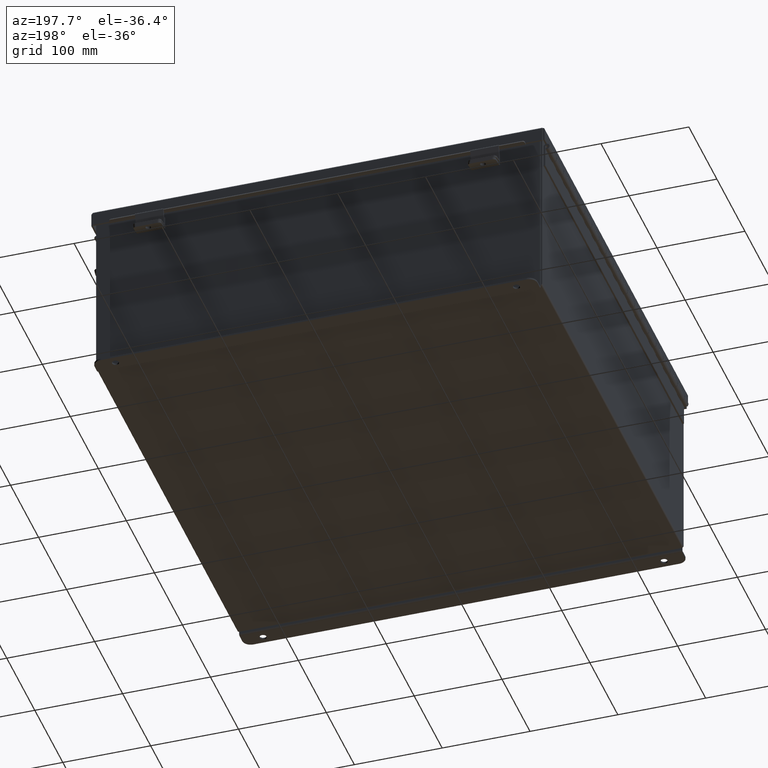
[diagram: clean part render]
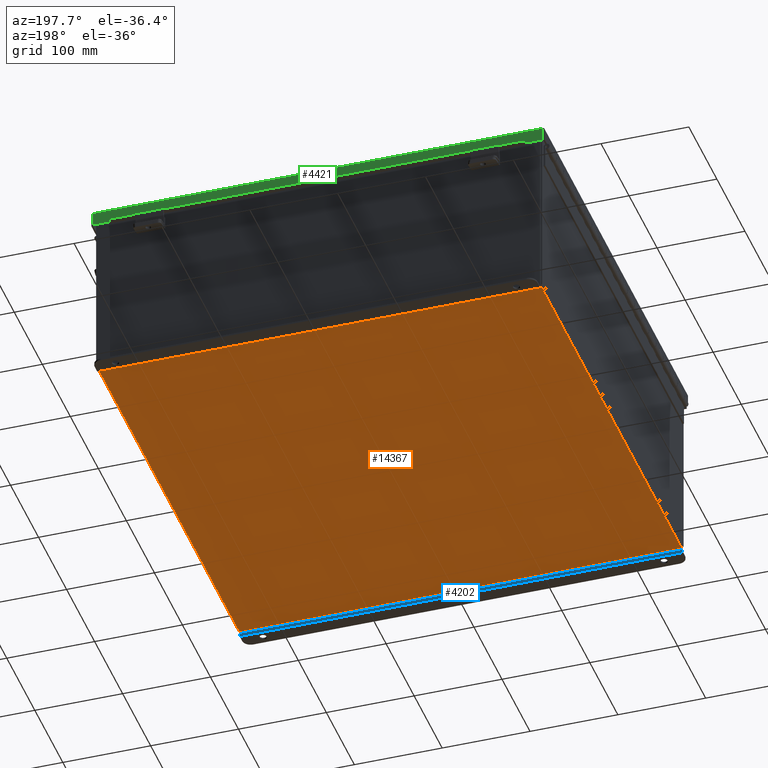
[diagram: same view with three faces highlighted in distinct colors, each labeled with its STEP entity id]
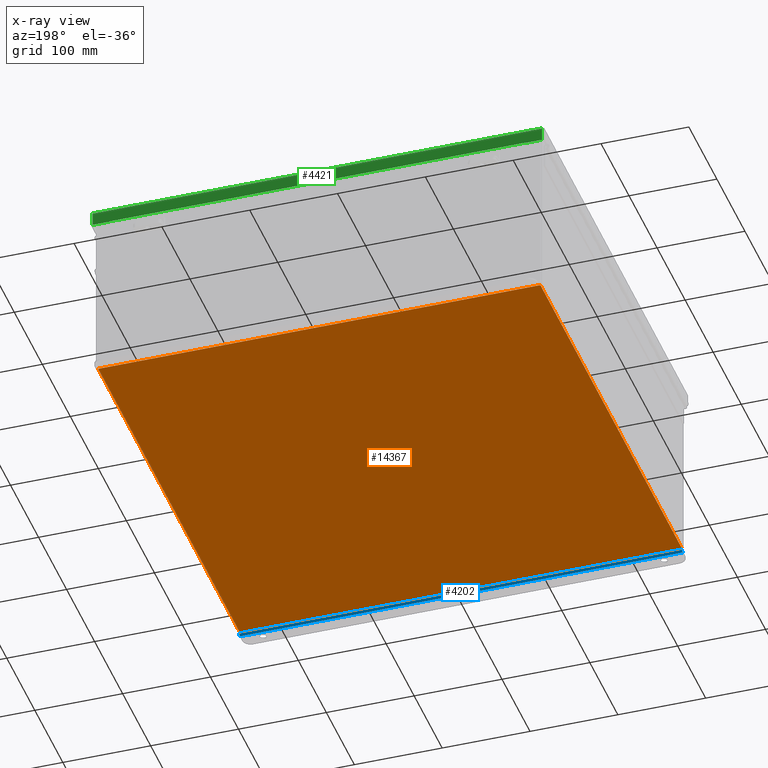
[diagram: x-ray of the same camera — body ghosted, the three highlighted faces saturated]
A machine part, auxiliary view with three faces highlighted in distinct colors.
The next image is the same camera in x-ray (body ghosted, the three faces saturated) — at least one of them is partly hidden behind the body in this view.
Their STEP definitions:

[orange] entity #14367 — the highlighted planar face has unit normal (0, 0, -1).
#65 = LINE ( 'NONE', #14070, #12718 ) ;
#1476 = VERTEX_POINT ( 'NONE', #14619 ) ;
#1915 = CARTESIAN_POINT ( 'NONE',  ( -9.999999999999998200, 9.925300000000001800, -0.07470000000000000300 ) ) ;
#3116 = ORIENTED_EDGE ( 'NONE', *, *, #17358, .F. ) ;
#3321 = AXIS2_PLACEMENT_3D ( 'NONE', #20022, #21731, #11268 ) ;
#3717 = LINE ( 'NONE', #13080, #16427 ) ;
#3770 = DIRECTION ( 'NONE',  ( -0.0000000000000000000, 1.000000000000000000, -0.0000000000000000000 ) ) ;
#4079 = VERTEX_POINT ( 'NONE', #7234 ) ;
#4439 = VECTOR ( 'NONE', #10445, 39.37007874015748100 ) ;
#4983 = ORIENTED_EDGE ( 'NONE', *, *, #7022, .T. ) ;
#5141 = CARTESIAN_POINT ( 'NONE',  ( 9.912300000000001900, -9.925299999999998200, -0.07470000000000000300 ) ) ;
#7022 = EDGE_CURVE ( 'NONE', #19064, #1476, #65, .T. ) ;
#7234 = CARTESIAN_POINT ( 'NONE',  ( 9.912300000000001900, 9.925299999999998200, -0.07469999999999994700 ) ) ;
#7809 = PLANE ( 'NONE',  #3321 ) ;
#9901 = VECTOR ( 'NONE', #14217, 39.37007874015748100 ) ;
#10431 = LINE ( 'NONE', #15998, #9901 ) ;
#10445 = DIRECTION ( 'NONE',  ( -1.000000000000000000, -0.0000000000000000000, -0.0000000000000000000 ) ) ;
#11268 = DIRECTION ( 'NONE',  ( -1.000000000000000000, 0.0000000000000000000, -0.0000000000000000000 ) ) ;
#12332 = EDGE_LOOP ( 'NONE', ( #3116, #14309, #12808, #4983 ) ) ;
#12718 = VECTOR ( 'NONE', #3770, 39.37007874015748100 ) ;
#12808 = ORIENTED_EDGE ( 'NONE', *, *, #15729, .F. ) ;
#13080 = CARTESIAN_POINT ( 'NONE',  ( -9.999999999999998200, -9.925299999999998200, -0.07470000000000000300 ) ) ;
#14070 = CARTESIAN_POINT ( 'NONE',  ( -9.912299999999998300, -9.925299999999998200, -0.07469999999999994700 ) ) ;
#14217 = DIRECTION ( 'NONE',  ( -0.0000000000000000000, -1.000000000000000000, -0.0000000000000000000 ) ) ;
#14309 = ORIENTED_EDGE ( 'NONE', *, *, #21996, .T. ) ;
#14367 = ADVANCED_FACE ( 'NONE', ( #16490 ), #7809, .T. ) ;
#14619 = CARTESIAN_POINT ( 'NONE',  ( -9.912299999999998300, 9.925300000000001800, -0.07470000000000000300 ) ) ;
#15435 = CARTESIAN_POINT ( 'NONE',  ( -9.912299999999998300, -9.925299999999992900, -0.07469999999999994700 ) ) ;
#15729 = EDGE_CURVE ( 'NONE', #19064, #18543, #3717, .T. ) ;
#15998 = CARTESIAN_POINT ( 'NONE',  ( 9.912300000000001900, 9.925300000000001800, -0.07469999999999994700 ) ) ;
#16427 = VECTOR ( 'NONE', #20066, 39.37007874015748100 ) ;
#16490 = FACE_OUTER_BOUND ( 'NONE', #12332, .T. ) ;
#17358 = EDGE_CURVE ( 'NONE', #4079, #1476, #22317, .T. ) ;
#18543 = VERTEX_POINT ( 'NONE', #5141 ) ;
#19064 = VERTEX_POINT ( 'NONE', #15435 ) ;
#20022 = CARTESIAN_POINT ( 'NONE',  ( 0.0000000000000000000, 0.0000000000000000000, -0.07470000000000000300 ) ) ;
#20066 = DIRECTION ( 'NONE',  ( 1.000000000000000000, 0.0000000000000000000, 0.0000000000000000000 ) ) ;
#21731 = DIRECTION ( 'NONE',  ( 0.0000000000000000000, 0.0000000000000000000, -1.000000000000000000 ) ) ;
#21996 = EDGE_CURVE ( 'NONE', #4079, #18543, #10431, .T. ) ;
#22317 = LINE ( 'NONE', #1915, #4439 ) ;

[blue] entity #4202 — the highlighted cylindrical surface (edge-blend (fillet) strip) has radius 2.2276 mm, axis along (1, 0, -0).
#1649 = CARTESIAN_POINT ( 'NONE',  ( -9.925299999999998200, -0.07470000000000234800, -4.099299999999999500 ) ) ;
#1715 = ORIENTED_EDGE ( 'NONE', *, *, #7615, .F. ) ;
#2092 = CIRCLE ( 'NONE', #20398, 0.08770000000000009700 ) ;
#2514 = ORIENTED_EDGE ( 'NONE', *, *, #11276, .F. ) ;
#3252 = EDGE_LOOP ( 'NONE', ( #1715, #2514, #8990, #21215 ) ) ;
#3558 = VECTOR ( 'NONE', #20733, 39.37007874015748100 ) ;
#4202 = ADVANCED_FACE ( 'NONE', ( #18838 ), #9060, .T. ) ;
#5876 = CARTESIAN_POINT ( 'NONE',  ( 9.925300000000016000, 0.01300000000001759100, -4.187000000000000300 ) ) ;
#6055 = VERTEX_POINT ( 'NONE', #21569 ) ;
#6107 = AXIS2_PLACEMENT_3D ( 'NONE', #7651, #19845, #9408 ) ;
#6167 = DIRECTION ( 'NONE',  ( -1.000000000000000000, -8.208677865577687000E-017, 0.0000000000000000000 ) ) ;
#7432 = CIRCLE ( 'NONE', #6107, 0.08770000000000009700 ) ;
#7615 = EDGE_CURVE ( 'NONE', #11168, #14384, #8102, .T. ) ;
#7651 = CARTESIAN_POINT ( 'NONE',  ( -9.925299999999996500, 0.01299999999999792100, -4.099300000000003900 ) ) ;
#8102 = LINE ( 'NONE', #1649, #3558 ) ;
#8990 = ORIENTED_EDGE ( 'NONE', *, *, #14288, .T. ) ;
#9060 = CYLINDRICAL_SURFACE ( 'NONE', #20391, 0.08770000000000026400 ) ;
#9408 = DIRECTION ( 'NONE',  ( 0.0000000000000000000, -1.000000000000000000, 0.0000000000000000000 ) ) ;
#9491 = CARTESIAN_POINT ( 'NONE',  ( 9.925299999999998200, 0.01300000000001759100, -4.099299999999999500 ) ) ;
#11045 = DIRECTION ( 'NONE',  ( 1.000000000000000000, 2.752408485047608900E-017, -0.0000000000000000000 ) ) ;
#11168 = VERTEX_POINT ( 'NONE', #21201 ) ;
#11193 = DIRECTION ( 'NONE',  ( 0.0000000000000000000, -1.000000000000000000, 0.0000000000000000000 ) ) ;
#11276 = EDGE_CURVE ( 'NONE', #21566, #11168, #7432, .T. ) ;
#11446 = CARTESIAN_POINT ( 'NONE',  ( -9.925299999999998200, 0.01299999999999792100, -4.099300000000003900 ) ) ;
#13463 = LINE ( 'NONE', #5876, #22185 ) ;
#14288 = EDGE_CURVE ( 'NONE', #21566, #6055, #13463, .T. ) ;
#14384 = VERTEX_POINT ( 'NONE', #16565 ) ;
#14960 = DIRECTION ( 'NONE',  ( 0.0000000000000000000, -3.699053013085864000E-015, -1.000000000000000000 ) ) ;
#15819 = EDGE_CURVE ( 'NONE', #14384, #6055, #2092, .T. ) ;
#16565 = CARTESIAN_POINT ( 'NONE',  ( 9.925299999999998200, -0.07469999999998268300, -4.099300000000003900 ) ) ;
#18838 = FACE_OUTER_BOUND ( 'NONE', #3252, .T. ) ;
#19845 = DIRECTION ( 'NONE',  ( -1.000000000000000000, -8.208677865577687000E-017, 0.0000000000000000000 ) ) ;
#20391 = AXIS2_PLACEMENT_3D ( 'NONE', #11446, #6167, #14960 ) ;
#20398 = AXIS2_PLACEMENT_3D ( 'NONE', #9491, #21662, #11193 ) ;
#20733 = DIRECTION ( 'NONE',  ( 1.000000000000000000, 8.208677865577687000E-017, -0.0000000000000000000 ) ) ;
#21201 = CARTESIAN_POINT ( 'NONE',  ( -9.925299999999996500, -0.07470000000000234800, -4.099299999999999500 ) ) ;
#21215 = ORIENTED_EDGE ( 'NONE', *, *, #15819, .F. ) ;
#21566 = VERTEX_POINT ( 'NONE', #21939 ) ;
#21569 = CARTESIAN_POINT ( 'NONE',  ( 9.925300000000016000, 0.01300000000001759100, -4.187000000000000300 ) ) ;
#21662 = DIRECTION ( 'NONE',  ( 1.000000000000000000, 8.208677865577687000E-017, -0.0000000000000000000 ) ) ;
#21939 = CARTESIAN_POINT ( 'NONE',  ( -9.925299999999978700, 0.01300000000000010700, -4.187000000000003800 ) ) ;
#22185 = VECTOR ( 'NONE', #11045, 39.37007874015748100 ) ;

[green] entity #4421 — the highlighted planar face has unit normal (-0, -1, -0).
#24 = CARTESIAN_POINT ( 'NONE',  ( 0.0000000000000000000, 10.15624999999998400, -3.715313271383398100E-014 ) ) ;
#425 = LINE ( 'NONE', #12943, #18256 ) ;
#780 = VERTEX_POINT ( 'NONE', #18286 ) ;
#1041 = CARTESIAN_POINT ( 'NONE',  ( 10.07447893218817300, 10.15624999999998400, 0.01300000000000010700 ) ) ;
#1050 = DIRECTION ( 'NONE',  ( -1.000000000000000000, -3.215975411700707400E-030, -0.0000000000000000000 ) ) ;
#1167 = CARTESIAN_POINT ( 'NONE',  ( 9.324478932188171100, 10.15624999999998400, 0.5967115427318793200 ) ) ;
#1249 = CARTESIAN_POINT ( 'NONE',  ( 9.324478932188171100, 10.15624999999998600, 0.5967115427318793200 ) ) ;
#1409 = DIRECTION ( 'NONE',  ( -3.347543324056399800E-030, -1.000000000000000000, 3.569293475308532400E-015 ) ) ;
#2027 = ORIENTED_EDGE ( 'NONE', *, *, #4588, .T. ) ;
#2455 = EDGE_CURVE ( 'NONE', #11644, #13441, #6492, .T. ) ;
#2606 = LINE ( 'NONE', #14813, #21555 ) ;
#2787 = EDGE_CURVE ( 'NONE', #13441, #9550, #14875, .T. ) ;
#3004 = CARTESIAN_POINT ( 'NONE',  ( 10.15625000000003900, 10.15624999999998400, 0.01299999999999901400 ) ) ;
#3974 = ORIENTED_EDGE ( 'NONE', *, *, #2787, .F. ) ;
#4057 = VECTOR ( 'NONE', #4700, 39.37007874015748100 ) ;
#4421 = ADVANCED_FACE ( 'NONE', ( #18565 ), #11044, .F. ) ;
#4588 = EDGE_CURVE ( 'NONE', #9544, #780, #2606, .T. ) ;
#4700 = DIRECTION ( 'NONE',  ( 1.000000000000000000, 3.215975411700707400E-030, -0.0000000000000000000 ) ) ;
#4883 = CARTESIAN_POINT ( 'NONE',  ( 10.07447893218817300, 10.15624999999998400, 0.0000000000000000000 ) ) ;
#4916 = CARTESIAN_POINT ( 'NONE',  ( 9.324478932188171100, 10.15624999999998600, 0.6123000000000005100 ) ) ;
#5071 = DIRECTION ( 'NONE',  ( 7.009925220120712300E-014, -1.401985044024140700E-013, -1.000000000000000000 ) ) ;
#5436 = ORIENTED_EDGE ( 'NONE', *, *, #10814, .F. ) ;
#5831 = VECTOR ( 'NONE', #6624, 39.37007874015748100 ) ;
#6075 = DIRECTION ( 'NONE',  ( 1.000000000000000000, 3.215538059845590000E-030, 3.362274453740340600E-018 ) ) ;
#6418 = ORIENTED_EDGE ( 'NONE', *, *, #12075, .T. ) ;
#6492 = LINE ( 'NONE', #1167, #15173 ) ;
#6624 = DIRECTION ( 'NONE',  ( -0.0000000000000000000, 3.569293475308532400E-015, 1.000000000000000000 ) ) ;
#7009 = VECTOR ( 'NONE', #18690, 39.37007874015748100 ) ;
#7617 = DIRECTION ( 'NONE',  ( 0.0000000000000000000, -3.569293475308532400E-015, -1.000000000000000000 ) ) ;
#8187 = EDGE_CURVE ( 'NONE', #780, #9550, #12129, .T. ) ;
#9308 = VERTEX_POINT ( 'NONE', #18061 ) ;
#9544 = VERTEX_POINT ( 'NONE', #18592 ) ;
#9550 = VERTEX_POINT ( 'NONE', #15077 ) ;
#10238 = VECTOR ( 'NONE', #19014, 39.37007874015748100 ) ;
#10387 = LINE ( 'NONE', #4883, #5831 ) ;
#10814 = EDGE_CURVE ( 'NONE', #18883, #9308, #10387, .T. ) ;
#11044 = PLANE ( 'NONE',  #14062 ) ;
#11064 = ORIENTED_EDGE ( 'NONE', *, *, #2455, .F. ) ;
#11644 = VERTEX_POINT ( 'NONE', #1249 ) ;
#11666 = CARTESIAN_POINT ( 'NONE',  ( -9.324478932188164000, 10.15624999999998400, 0.5967115427318869800 ) ) ;
#11922 = ORIENTED_EDGE ( 'NONE', *, *, #20785, .F. ) ;
#12075 = EDGE_CURVE ( 'NONE', #18481, #9308, #425, .T. ) ;
#12129 = LINE ( 'NONE', #22119, #7009 ) ;
#12151 = CARTESIAN_POINT ( 'NONE',  ( -9.324478932188164000, 10.15624999999998600, 0.5967115427318869800 ) ) ;
#12943 = CARTESIAN_POINT ( 'NONE',  ( -2.134256245050205600E-018, 10.15624999999998600, 0.6122999999999994000 ) ) ;
#13357 = VECTOR ( 'NONE', #5071, 39.37007874015748100 ) ;
#13441 = VERTEX_POINT ( 'NONE', #12151 ) ;
#13611 = EDGE_LOOP ( 'NONE', ( #20296, #6418, #5436, #11922, #2027, #21528, #3974, #11064 ) ) ;
#13767 = LINE ( 'NONE', #3004, #4057 ) ;
#14062 = AXIS2_PLACEMENT_3D ( 'NONE', #24, #1409, #7617 ) ;
#14813 = CARTESIAN_POINT ( 'NONE',  ( -10.07447893218816400, 10.15624999999998400, -3.606039351636827200E-014 ) ) ;
#14875 = LINE ( 'NONE', #11666, #10238 ) ;
#15077 = CARTESIAN_POINT ( 'NONE',  ( -9.324478932188165800, 10.15624999999998600, 0.6123000000000080600 ) ) ;
#15173 = VECTOR ( 'NONE', #1050, 39.37007874015748100 ) ;
#16659 = EDGE_CURVE ( 'NONE', #18481, #11644, #18008, .T. ) ;
#18008 = LINE ( 'NONE', #20663, #13357 ) ;
#18061 = CARTESIAN_POINT ( 'NONE',  ( 10.07447893218817300, 10.15624999999998600, 0.6123000000000005100 ) ) ;
#18256 = VECTOR ( 'NONE', #6075, 39.37007874015748100 ) ;
#18286 = CARTESIAN_POINT ( 'NONE',  ( -10.07447893218816400, 10.15624999999998600, 0.6123000000000080600 ) ) ;
#18481 = VERTEX_POINT ( 'NONE', #4916 ) ;
#18565 = FACE_OUTER_BOUND ( 'NONE', #13611, .T. ) ;
#18592 = CARTESIAN_POINT ( 'NONE',  ( -10.07447893218816400, 10.15624999999998400, 0.01300000000000010700 ) ) ;
#18690 = DIRECTION ( 'NONE',  ( 1.000000000000000000, 3.215538059845590000E-030, 3.362274453740340600E-018 ) ) ;
#18883 = VERTEX_POINT ( 'NONE', #1041 ) ;
#19014 = DIRECTION ( 'NONE',  ( -7.009925220120437100E-014, 1.401985044024085400E-013, 1.000000000000000000 ) ) ;
#20296 = ORIENTED_EDGE ( 'NONE', *, *, #16659, .F. ) ;
#20493 = DIRECTION ( 'NONE',  ( 0.0000000000000000000, 3.569293475308532400E-015, 1.000000000000000000 ) ) ;
#20663 = CARTESIAN_POINT ( 'NONE',  ( 9.324478932188171100, 10.15624999999998600, 0.6122999999999994000 ) ) ;
#20785 = EDGE_CURVE ( 'NONE', #9544, #18883, #13767, .T. ) ;
#21528 = ORIENTED_EDGE ( 'NONE', *, *, #8187, .T. ) ;
#21555 = VECTOR ( 'NONE', #20493, 39.37007874015748100 ) ;
#22119 = CARTESIAN_POINT ( 'NONE',  ( -2.134256245050205600E-018, 10.15624999999998600, 0.6122999999999994000 ) ) ;